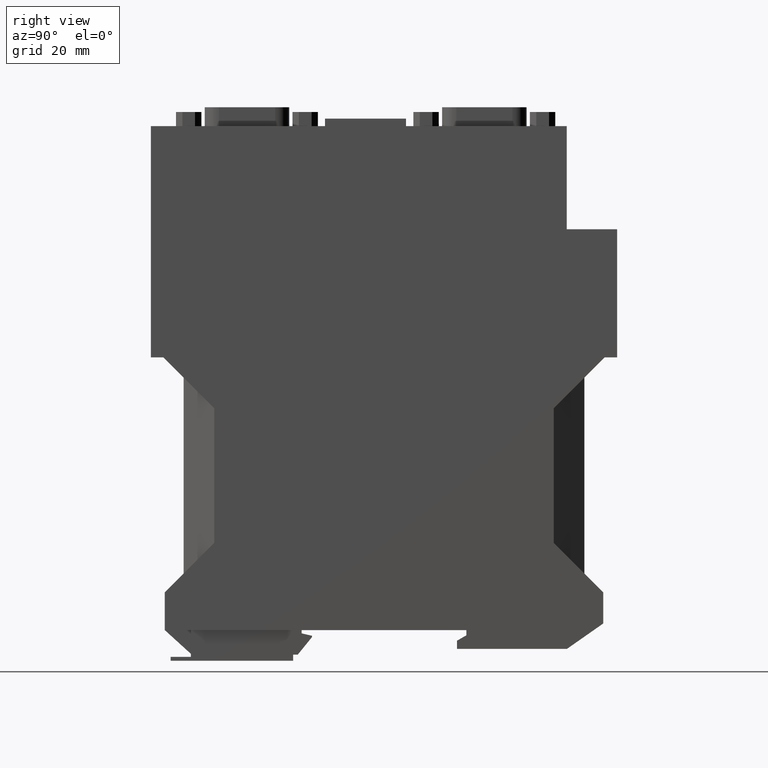
[diagram: clean part render]
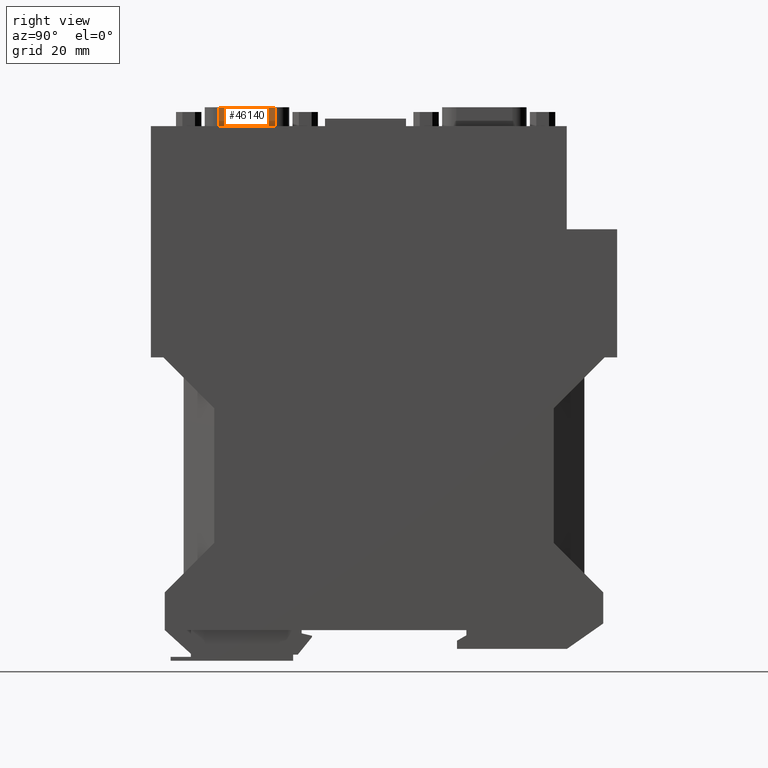
[diagram: same view with one face highlighted and labeled with its STEP entity id]
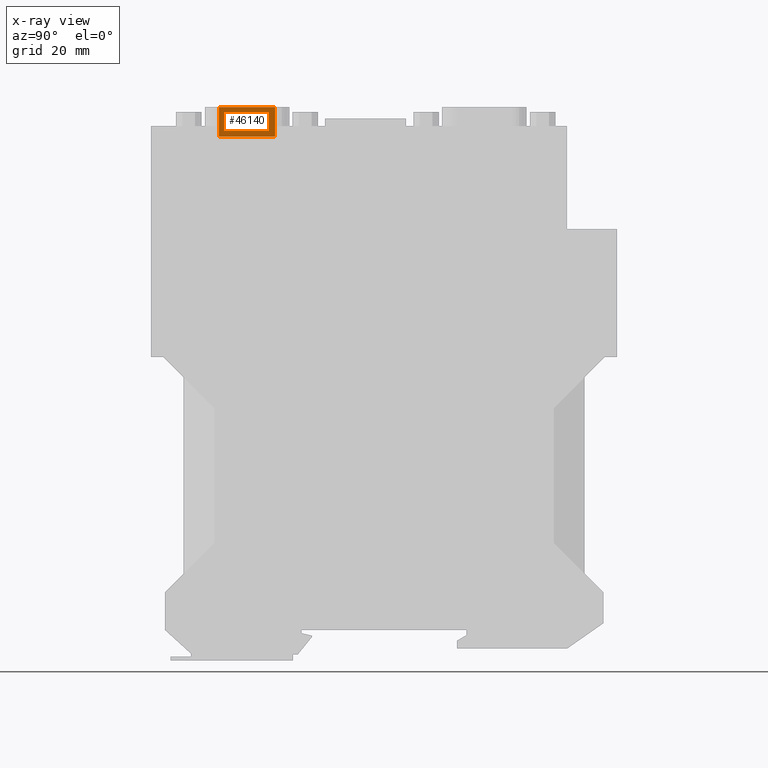
[diagram: x-ray of the same camera — body ghosted, the highlighted face saturated]
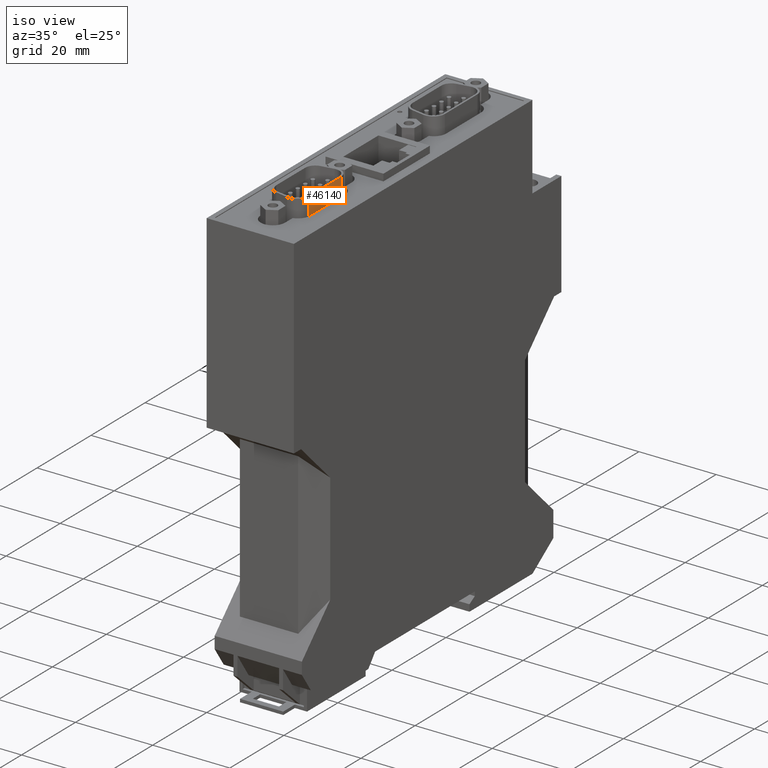
[diagram: same view with one face highlighted and labeled with its STEP entity id]
A machine part, right view. The second image highlights one B-rep face of the part: STEP entity #46140.
The next image is the same camera in x-ray: the body ghosted, the highlighted face saturated — about 0% of this face is hidden behind the body in this view.
A second angle (iso view) of the same face is appended — the face is thin or edge-on in the first view.
In plain terms, the highlighted planar face has unit normal (-1, -0, 0).
Its self-contained STEP definition (entity closure, byte-faithful):
#39020=CARTESIAN_POINT('',(-52.5360481335058,104.799999999979,
16.3507559605386));
#39030=VERTEX_POINT('',#39020);
#39060=CARTESIAN_POINT('',(-21.4582481189025,104.799999999957,
16.3507559605383));
#39070=DIRECTION('',(1.,-7.38964445188328E-13,-8.61887528884398E-15));
#39080=VECTOR('',#39070,1.);
#39090=LINE('',#39060,#39080);
#39100=CARTESIAN_POINT('',(-40.6560481335058,104.799999999971,
16.3507559605385));
#39110=VERTEX_POINT('',#39100);
#39120=EDGE_CURVE('',#39030,#39110,#39090,.T.);
#45700=CARTESIAN_POINT('',(-52.5360481335059,110.999999999968,
16.3507559605394));
#45710=VERTEX_POINT('',#45700);
#45740=CARTESIAN_POINT('',(-52.5360481335059,117.804799999947,
16.3507559605403));
#45750=DIRECTION('',(4.90822482988215E-15,-1.,-1.2878153174413E-13));
#45760=VECTOR('',#45750,1.);
#45770=LINE('',#45740,#45760);
#45780=EDGE_CURVE('',#45710,#39030,#45770,.T.);
#45910=CARTESIAN_POINT('',(-40.6560481335059,117.804799999947,
16.3507559605402));
#45920=DIRECTION('',(-8.61887528874877E-15,1.2878153174413E-13,-1.));
#45930=DIRECTION('',(1.,4.90822482988326E-15,-8.61887528874813E-15));
#45940=AXIS2_PLACEMENT_3D('',#45910,#45920,#45930);
#45950=PLANE('',#45940);
#45960=ORIENTED_EDGE('',*,*,#45780,.T.);
#45970=CARTESIAN_POINT('',(-21.4582481189025,110.999999999969,
16.350755960539));
#45980=DIRECTION('',(-1.,0.,8.61887528874877E-15));
#45990=VECTOR('',#45980,1.);
#46000=LINE('',#45970,#45990);
#46010=CARTESIAN_POINT('',(-40.6560481335059,110.999999999968,
16.3507559605393));
#46020=VERTEX_POINT('',#46010);
#46030=EDGE_CURVE('',#46020,#45710,#46000,.T.);
#46040=ORIENTED_EDGE('',*,*,#46030,.T.);
#46050=CARTESIAN_POINT('',(-40.6560481335059,117.804799999947,
16.3507559605402));
#46060=DIRECTION('',(4.90822482988215E-15,-1.,-1.2878153174413E-13));
#46070=VECTOR('',#46060,1.);
#46080=LINE('',#46050,#46070);
#46090=EDGE_CURVE('',#46020,#39110,#46080,.T.);
#46100=ORIENTED_EDGE('',*,*,#46090,.F.);
#46110=ORIENTED_EDGE('',*,*,#39120,.T.);
#46120=EDGE_LOOP('',(#46110,#46100,#46040,#45960));
#46130=FACE_OUTER_BOUND('',#46120,.T.);
#46140=ADVANCED_FACE('',(#46130),#45950,.F.);